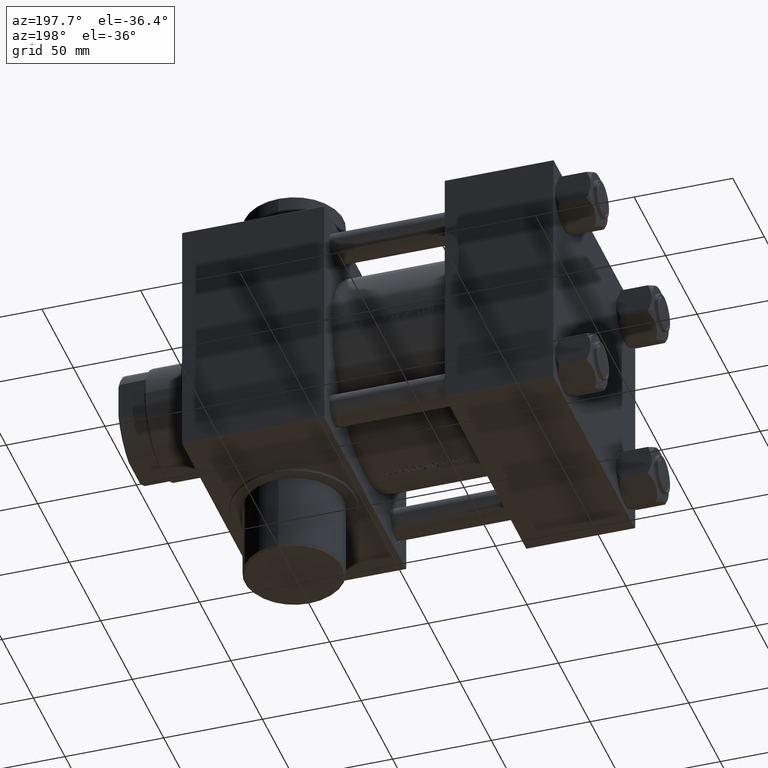
[diagram: clean part render]
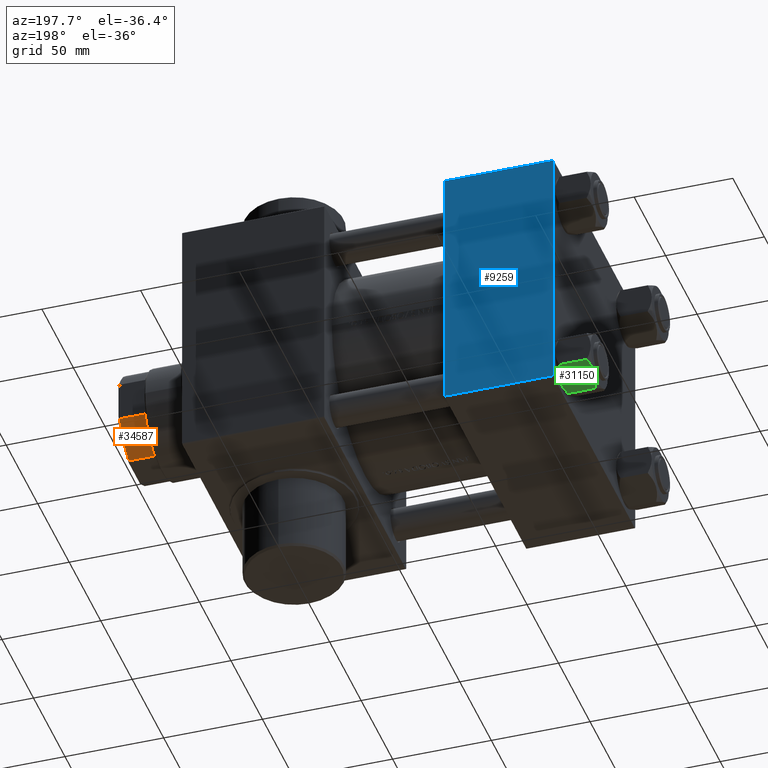
[diagram: same view with three faces highlighted in distinct colors, each labeled with its STEP entity id]
A machine part, auxiliary view with three faces highlighted in distinct colors.
Their STEP definitions:

[orange] entity #34587 — the highlighted cylindrical surface (partial cylindrical patch) has radius 27 mm, axis along (1, 0, 0).
#370 = DIRECTION ( 'NONE',  ( 1.000000000000000000, 0.000000000000000000, 0.000000000000000000 ) ) ;
#3110 = DIRECTION ( 'NONE',  ( -0.000000000000000000, -0.000000000000000000, 1.000000000000000000 ) ) ;
#3581 = DIRECTION ( 'NONE',  ( -1.000000000000000000, 2.664535259100375697E-15, 0.000000000000000000 ) ) ;
#4153 = CARTESIAN_POINT ( 'NONE',  ( 0.000000000000000000, 0.000000000000000000, 177.5000000000000000 ) ) ;
#5019 = AXIS2_PLACEMENT_3D ( 'NONE', #4153, #28831, #370 ) ;
#9801 = CARTESIAN_POINT ( 'NONE',  ( -25.00000000000000000, 10.19803902718555655, -0.001000000000001000089 ) ) ;
#11512 = CARTESIAN_POINT ( 'NONE',  ( -25.00000000000000000, 10.19803902718555655, 177.5000000000000000 ) ) ;
#11594 = CARTESIAN_POINT ( 'NONE',  ( -10.19803902718555300, 25.00000000000000000, 164.5000000000000000 ) ) ;
#11891 = CIRCLE ( 'NONE', #30082, 26.99999999999999645 ) ;
#12213 = FACE_OUTER_BOUND ( 'NONE', #24956, .T. ) ;
#12677 = DIRECTION ( 'NONE',  ( -0.000000000000000000, -0.000000000000000000, 1.000000000000000000 ) ) ;
#12905 = CARTESIAN_POINT ( 'NONE',  ( 0.000000000000000000, 0.000000000000000000, -0.001000000000001000089 ) ) ;
#13128 = DIRECTION ( 'NONE',  ( -0.000000000000000000, -0.000000000000000000, 1.000000000000000000 ) ) ;
#15074 = LINE ( 'NONE', #40897, #16774 ) ;
#15766 = CYLINDRICAL_SURFACE ( 'NONE', #26554, 26.99999999999999645 ) ;
#16774 = VECTOR ( 'NONE', #18848, 1000.000000000000000 ) ;
#18848 = DIRECTION ( 'NONE',  ( -0.000000000000000000, -0.000000000000000000, 1.000000000000000000 ) ) ;
#19265 = EDGE_CURVE ( 'NONE', #36234, #29622, #45139, .T. ) ;
#21713 = EDGE_CURVE ( 'NONE', #27846, #46281, #11891, .T. ) ;
#23056 = ORIENTED_EDGE ( 'NONE', *, *, #36180, .F. ) ;
#24345 = ORIENTED_EDGE ( 'NONE', *, *, #43677, .T. ) ;
#24956 = EDGE_LOOP ( 'NONE', ( #24345, #36300, #23056, #26725 ) ) ;
#26554 = AXIS2_PLACEMENT_3D ( 'NONE', #12905, #12677, #40886 ) ;
#26725 = ORIENTED_EDGE ( 'NONE', *, *, #21713, .T. ) ;
#26850 = VECTOR ( 'NONE', #13128, 1000.000000000000000 ) ;
#27846 = VERTEX_POINT ( 'NONE', #11594 ) ;
#28831 = DIRECTION ( 'NONE',  ( -0.000000000000000000, -0.000000000000000000, -1.000000000000000000 ) ) ;
#29277 = CARTESIAN_POINT ( 'NONE',  ( -10.19803902718555655, 25.00000000000000000, 177.5000000000000000 ) ) ;
#29622 = VERTEX_POINT ( 'NONE', #29277 ) ;
#30082 = AXIS2_PLACEMENT_3D ( 'NONE', #42239, #3110, #3581 ) ;
#31557 = CARTESIAN_POINT ( 'NONE',  ( -25.00000000000000000, 10.19803902718555122, 164.5000000000000000 ) ) ;
#34587 = ADVANCED_FACE ( 'NONE', ( #12213 ), #15766, .T. ) ;
#36180 = EDGE_CURVE ( 'NONE', #27846, #29622, #15074, .T. ) ;
#36234 = VERTEX_POINT ( 'NONE', #11512 ) ;
#36300 = ORIENTED_EDGE ( 'NONE', *, *, #19265, .T. ) ;
#40886 = DIRECTION ( 'NONE',  ( 1.000000000000000000, 0.000000000000000000, 0.000000000000000000 ) ) ;
#40897 = CARTESIAN_POINT ( 'NONE',  ( -10.19803902718555655, 25.00000000000000000, -0.001000000000001000089 ) ) ;
#42239 = CARTESIAN_POINT ( 'NONE',  ( 0.000000000000000000, 0.000000000000000000, 164.5000000000000000 ) ) ;
#42280 = LINE ( 'NONE', #9801, #26850 ) ;
#43677 = EDGE_CURVE ( 'NONE', #46281, #36234, #42280, .T. ) ;
#45139 = CIRCLE ( 'NONE', #5019, 26.99999999999999645 ) ;
#46281 = VERTEX_POINT ( 'NONE', #31557 ) ;

[blue] entity #9259 — the highlighted planar face has unit normal (0, -1, -0).
#744 = PLANE ( 'NONE',  #11049 ) ;
#3012 = ORIENTED_EDGE ( 'NONE', *, *, #10696, .F. ) ;
#4999 = DIRECTION ( 'NONE',  ( 0.000000000000000000, 1.067522139062650425E-16, -1.000000000000000000 ) ) ;
#5118 = DIRECTION ( 'NONE',  ( -1.000000000000000000, 0.000000000000000000, 0.000000000000000000 ) ) ;
#6041 = LINE ( 'NONE', #27181, #7395 ) ;
#6356 = VERTEX_POINT ( 'NONE', #29299 ) ;
#7395 = VECTOR ( 'NONE', #5118, 1000.000000000000000 ) ;
#9259 = ADVANCED_FACE ( 'NONE', ( #22296 ), #744, .F. ) ;
#9435 = CARTESIAN_POINT ( 'NONE',  ( 0.000000000000000000, 64.50000000000000000, 65.00000000000001421 ) ) ;
#10696 = EDGE_CURVE ( 'NONE', #40574, #6356, #44006, .T. ) ;
#11049 = AXIS2_PLACEMENT_3D ( 'NONE', #15202, #4999, #30391 ) ;
#12299 = VECTOR ( 'NONE', #13760, 1000.000000000000000 ) ;
#12750 = EDGE_CURVE ( 'NONE', #40574, #36642, #6041, .T. ) ;
#13760 = DIRECTION ( 'NONE',  ( 0.000000000000000000, -1.000000000000000000, -1.067522139062650425E-16 ) ) ;
#14464 = LINE ( 'NONE', #46685, #12299 ) ;
#15202 = CARTESIAN_POINT ( 'NONE',  ( 55.00000000000000000, 65.00000000000000000, 65.00000000000001421 ) ) ;
#15533 = ORIENTED_EDGE ( 'NONE', *, *, #40339, .T. ) ;
#17331 = ORIENTED_EDGE ( 'NONE', *, *, #12750, .T. ) ;
#21358 = DIRECTION ( 'NONE',  ( 1.000000000000000000, 0.000000000000000000, 0.000000000000000000 ) ) ;
#22296 = FACE_OUTER_BOUND ( 'NONE', #44384, .T. ) ;
#22665 = CARTESIAN_POINT ( 'NONE',  ( 55.00000000000000000, 65.00000000000000000, 65.00000000000001421 ) ) ;
#26489 = DIRECTION ( 'NONE',  ( 0.000000000000000000, -1.000000000000000000, -1.067522139062650425E-16 ) ) ;
#27181 = CARTESIAN_POINT ( 'NONE',  ( 0.000000000000000000, 64.50000000000000000, 65.00000000000001421 ) ) ;
#27819 = CARTESIAN_POINT ( 'NONE',  ( 55.00000000000000000, -64.50000000000002842, 65.00000000000000000 ) ) ;
#28203 = CARTESIAN_POINT ( 'NONE',  ( 0.000000000000000000, -64.50000000000002842, 65.00000000000000000 ) ) ;
#28968 = VERTEX_POINT ( 'NONE', #28203 ) ;
#29299 = CARTESIAN_POINT ( 'NONE',  ( 55.00000000000000000, -64.50000000000002842, 65.00000000000000000 ) ) ;
#30391 = DIRECTION ( 'NONE',  ( 0.000000000000000000, 1.000000000000000000, 1.067522139062650425E-16 ) ) ;
#32513 = LINE ( 'NONE', #27819, #42579 ) ;
#32756 = CARTESIAN_POINT ( 'NONE',  ( 55.00000000000000000, 64.50000000000000000, 65.00000000000001421 ) ) ;
#33842 = VECTOR ( 'NONE', #26489, 1000.000000000000000 ) ;
#36642 = VERTEX_POINT ( 'NONE', #9435 ) ;
#40339 = EDGE_CURVE ( 'NONE', #28968, #6356, #32513, .T. ) ;
#40574 = VERTEX_POINT ( 'NONE', #32756 ) ;
#42579 = VECTOR ( 'NONE', #21358, 1000.000000000000000 ) ;
#43931 = ORIENTED_EDGE ( 'NONE', *, *, #46400, .T. ) ;
#44006 = LINE ( 'NONE', #22665, #33842 ) ;
#44384 = EDGE_LOOP ( 'NONE', ( #43931, #15533, #3012, #17331 ) ) ;
#46400 = EDGE_CURVE ( 'NONE', #36642, #28968, #14464, .T. ) ;
#46685 = CARTESIAN_POINT ( 'NONE',  ( 0.000000000000000000, 65.00000000000000000, 65.00000000000001421 ) ) ;

[green] entity #31150 — the highlighted planar face has unit normal (0, -0.5, 0.866).
#472 = LINE ( 'NONE', #22252, #28646 ) ;
#530 = VERTEX_POINT ( 'NONE', #11530 ) ;
#801 = EDGE_CURVE ( 'NONE', #19573, #17342, #2665, .T. ) ;
#2665 = LINE ( 'NONE', #24234, #13240 ) ;
#2874 = CARTESIAN_POINT ( 'NONE',  ( 5.184073258379408244, -13.52731680711293372, -0.9481437906500832513 ) ) ;
#3041 = CARTESIAN_POINT ( 'NONE',  ( 7.622943475354652776, -13.52731680711293372, -2.000000000000000000 ) ) ;
#3177 = CARTESIAN_POINT ( 'NONE',  ( -7.622943475354647447, -13.52731680711293727, -16.00000000000000000 ) ) ;
#3739 = ORIENTED_EDGE ( 'NONE', *, *, #23022, .T. ) ;
#5146 = B_SPLINE_CURVE_WITH_KNOTS ( 'NONE', 3,
 ( #33713, #9043, #23280, #27324, #29940, #30185, #44608, #38901, #2874, #9509, #27558, #6413 ),
 .UNSPECIFIED., .F., .F.,
 ( 4, 2, 2, 2, 2, 4 ),
 ( 0.02774433486126546416, 0.02873404020403550266, 0.02972374554680554115, 0.03170315623234561814, 0.03368256691788569512, 0.03566197760342577211 ),
 .UNSPECIFIED. ) ;
#6413 = CARTESIAN_POINT ( 'NONE',  ( 7.622943475354652776, -13.52731680711293372, -2.000000000000000000 ) ) ;
#6529 = CARTESIAN_POINT ( 'NONE',  ( 4.553769687922309295, -13.52731680711293194, -17.26727080048548046 ) ) ;
#7490 = EDGE_CURVE ( 'NONE', #43321, #19573, #28329, .T. ) ;
#7751 = DIRECTION ( 'NONE',  ( 1.000000000000000000, 2.221156819432531199E-16, -0.000000000000000000 ) ) ;
#7979 = CARTESIAN_POINT ( 'NONE',  ( 7.622943475354652776, -13.52731680711293372, -16.00000000000000000 ) ) ;
#8481 = ORIENTED_EDGE ( 'NONE', *, *, #24801, .F. ) ;
#9043 = CARTESIAN_POINT ( 'NONE',  ( 0.3330234424833860007, -13.52731680711293727, 1.736982230502816853E-15 ) ) ;
#9260 = VECTOR ( 'NONE', #7751, 1000.000000000000000 ) ;
#9433 = CARTESIAN_POINT ( 'NONE',  ( -7.809999999999999609, -13.52731680711293727, -16.00000000000000000 ) ) ;
#9452 = CARTESIAN_POINT ( 'NONE',  ( 7.810000000000002274, -13.52731680711293372, -1.999999999999998224 ) ) ;
#9509 = CARTESIAN_POINT ( 'NONE',  ( 6.422751913021828685, -13.52731680711293549, -1.436509110925896948 ) ) ;
#10324 = CARTESIAN_POINT ( 'NONE',  ( 2.638177715023113379, -13.52731680711293549, -17.79984593233011481 ) ) ;
#11156 = PLANE ( 'NONE',  #21978 ) ;
#11237 = CARTESIAN_POINT ( 'NONE',  ( 3.004629197474319246E-15, -13.52731680711293727, -18.00000000000000000 ) ) ;
#11394 = VERTEX_POINT ( 'NONE', #7979 ) ;
#11530 = CARTESIAN_POINT ( 'NONE',  ( 7.810000000000002274, -13.52731680711293372, -16.00000000000000000 ) ) ;
#11688 = LINE ( 'NONE', #33260, #40880 ) ;
#11744 = EDGE_LOOP ( 'NONE', ( #32929, #3739, #8481, #24726, #15472, #11883, #24948, #14839, #21528, #15379 ) ) ;
#11883 = ORIENTED_EDGE ( 'NONE', *, *, #38871, .F. ) ;
#12922 = EDGE_CURVE ( 'NONE', #530, #11394, #36137, .T. ) ;
#13240 = VECTOR ( 'NONE', #20897, 1000.000000000000000 ) ;
#13431 = CARTESIAN_POINT ( 'NONE',  ( 7.030888348548065103, -13.52731680711293194, -16.29066211644969897 ) ) ;
#13850 = CARTESIAN_POINT ( 'NONE',  ( -0.3330234424833808937, -13.52731680711293372, -18.00000000000000711 ) ) ;
#14158 = CARTESIAN_POINT ( 'NONE',  ( 3.004629197474319246E-15, -13.52731680711293727, 0.000000000000000000 ) ) ;
#14839 = ORIENTED_EDGE ( 'NONE', *, *, #801, .F. ) ;
#14956 = CARTESIAN_POINT ( 'NONE',  ( -7.809999999999999609, -13.52731680711293727, -1.999999999999998224 ) ) ;
#15379 = ORIENTED_EDGE ( 'NONE', *, *, #19220, .F. ) ;
#15472 = ORIENTED_EDGE ( 'NONE', *, *, #32254, .F. ) ;
#15886 = CARTESIAN_POINT ( 'NONE',  ( -7.030888348548060662, -13.52731680711294082, -1.709337883550297699 ) ) ;
#17027 = DIRECTION ( 'NONE',  ( 1.000000000000000000, 2.221156819432531199E-16, -0.000000000000000000 ) ) ;
#17032 = CARTESIAN_POINT ( 'NONE',  ( 3.004629197474319246E-15, -13.52731680711293727, 0.000000000000000000 ) ) ;
#17342 = VERTEX_POINT ( 'NONE', #9433 ) ;
#18100 = CARTESIAN_POINT ( 'NONE',  ( -7.030203932307581560, -13.52731680711293727, -16.29099812210860065 ) ) ;
#19220 = EDGE_CURVE ( 'NONE', #11394, #43321, #34956, .T. ) ;
#19430 = CARTESIAN_POINT ( 'NONE',  ( -7.622943475354647447, -13.52731680711293727, -2.000000000000000000 ) ) ;
#19573 = VERTEX_POINT ( 'NONE', #40596 ) ;
#19662 = CARTESIAN_POINT ( 'NONE',  ( -4.553769687922305742, -13.52731680711294082, -0.7327291995145158721 ) ) ;
#19891 = CARTESIAN_POINT ( 'NONE',  ( -1.335584685993413956, -13.52731680711294082, 1.666960840196463265E-15 ) ) ;
#20057 = CARTESIAN_POINT ( 'NONE',  ( 1.335584685993418619, -13.52731680711293372, -18.00000000000000355 ) ) ;
#20897 = DIRECTION ( 'NONE',  ( -1.000000000000000000, -2.221156819432531199E-16, 0.000000000000000000 ) ) ;
#21001 = VECTOR ( 'NONE', #33279, 1000.000000000000000 ) ;
#21410 = CARTESIAN_POINT ( 'NONE',  ( -1.663410456966171180, -13.52731680711293549, -17.90195050864300796 ) ) ;
#21528 = ORIENTED_EDGE ( 'NONE', *, *, #7490, .F. ) ;
#21837 = VERTEX_POINT ( 'NONE', #14956 ) ;
#21978 = AXIS2_PLACEMENT_3D ( 'NONE', #25625, #26092, #40536 ) ;
#22121 = CARTESIAN_POINT ( 'NONE',  ( -2.644243758052987836, -13.52731680711293549, -17.75917188019760218 ) ) ;
#22252 = CARTESIAN_POINT ( 'NONE',  ( 7.810000000000002274, -13.52731680711293372, -18.00000000000000000 ) ) ;
#22529 = B_SPLINE_CURVE_WITH_KNOTS ( 'NONE', 3,
 ( #19430, #15886, #30367, #44790, #19662, #34132, #19891, #17032 ),
 .UNSPECIFIED., .F., .F.,
 ( 4, 2, 2, 4 ),
 ( 0.01980594295952729095, 0.02179054093496183425, 0.02377513891039637756, 0.02774433486126546416 ),
 .UNSPECIFIED. ) ;
#23022 = EDGE_CURVE ( 'NONE', #530, #27174, #472, .T. ) ;
#23280 = CARTESIAN_POINT ( 'NONE',  ( 0.6693083573771232420, -13.52731680711293372, -0.01249333081107902900 ) ) ;
#24234 = CARTESIAN_POINT ( 'NONE',  ( 7.810000000000002274, -13.52731680711293372, -16.00000000000000000 ) ) ;
#24726 = ORIENTED_EDGE ( 'NONE', *, *, #38332, .F. ) ;
#24801 = EDGE_CURVE ( 'NONE', #35071, #27174, #41925, .T. ) ;
#24948 = ORIENTED_EDGE ( 'NONE', *, *, #33085, .F. ) ;
#25470 = CARTESIAN_POINT ( 'NONE',  ( -4.557734399832409800, -13.52731680711293905, -17.26585298258849122 ) ) ;
#25625 = CARTESIAN_POINT ( 'NONE',  ( 7.810000000000002274, -13.52731680711293372, -18.00000000000000000 ) ) ;
#26092 = DIRECTION ( 'NONE',  ( -2.221156819432531199E-16, 1.000000000000000000, 0.000000000000000000 ) ) ;
#27174 = VERTEX_POINT ( 'NONE', #28622 ) ;
#27324 = CARTESIAN_POINT ( 'NONE',  ( 1.333889873825135686, -13.52731680711293549, -0.06156641003439144999 ) ) ;
#27444 = CARTESIAN_POINT ( 'NONE',  ( 5.189513245496335969, -13.52731680711293194, -17.04988915682674033 ) ) ;
#27558 = CARTESIAN_POINT ( 'NONE',  ( 7.030203932307590442, -13.52731680711293727, -1.709001877891394017 ) ) ;
#27669 = CARTESIAN_POINT ( 'NONE',  ( 3.004629197474319246E-15, -13.52731680711293727, -18.00000000000000000 ) ) ;
#28322 = CARTESIAN_POINT ( 'NONE',  ( -6.422751913021825132, -13.52731680711293905, -16.56349088907410305 ) ) ;
#28329 = B_SPLINE_CURVE_WITH_KNOTS ( 'NONE', 3,
 ( #11237, #13850, #35664, #32102, #21410, #22121, #36599, #25470, #46313, #28322, #18100, #3177 ),
 .UNSPECIFIED., .F., .F.,
 ( 4, 2, 2, 2, 2, 4 ),
 ( 0.02774433486126545376, 0.02873404020403549225, 0.02972374554680553074, 0.03170315623234560426, 0.03368256691788568125, 0.03566197760342575823 ),
 .UNSPECIFIED. ) ;
#28622 = CARTESIAN_POINT ( 'NONE',  ( 7.810000000000002274, -13.52731680711293372, -1.999999999999998224 ) ) ;
#28646 = VECTOR ( 'NONE', #32943, 1000.000000000000000 ) ;
#29940 = CARTESIAN_POINT ( 'NONE',  ( 1.663410456966175843, -13.52731680711293372, -0.09804949135698878826 ) ) ;
#30185 = CARTESIAN_POINT ( 'NONE',  ( 2.644243758052992277, -13.52731680711293372, -0.2408281198023969893 ) ) ;
#30367 = CARTESIAN_POINT ( 'NONE',  ( -6.427364677720470709, -13.52731680711293727, -1.438506937155139109 ) ) ;
#31150 = ADVANCED_FACE ( 'NONE', ( #36282 ), #11156, .F. ) ;
#32102 = CARTESIAN_POINT ( 'NONE',  ( -1.333889873825130579, -13.52731680711293549, -17.93843358996560866 ) ) ;
#32254 = EDGE_CURVE ( 'NONE', #37319, #42300, #22529, .T. ) ;
#32929 = ORIENTED_EDGE ( 'NONE', *, *, #12922, .F. ) ;
#32943 = DIRECTION ( 'NONE',  ( -0.000000000000000000, -0.000000000000000000, 1.000000000000000000 ) ) ;
#33085 = EDGE_CURVE ( 'NONE', #17342, #21837, #11688, .T. ) ;
#33260 = CARTESIAN_POINT ( 'NONE',  ( -7.809999999999999609, -13.52731680711293727, -18.00000000000000000 ) ) ;
#33279 = DIRECTION ( 'NONE',  ( -1.000000000000000000, -2.221156819432531199E-16, 0.000000000000000000 ) ) ;
#33514 = CARTESIAN_POINT ( 'NONE',  ( 7.810000000000002274, -13.52731680711293372, -16.00000000000000000 ) ) ;
#33713 = CARTESIAN_POINT ( 'NONE',  ( 3.004629197474319246E-15, -13.52731680711293727, 0.000000000000000000 ) ) ;
#34132 = CARTESIAN_POINT ( 'NONE',  ( -2.638177715023105385, -13.52731680711294082, -0.2001540676698838062 ) ) ;
#34697 = CARTESIAN_POINT ( 'NONE',  ( -7.622943475354647447, -13.52731680711293727, -2.000000000000000000 ) ) ;
#34956 = B_SPLINE_CURVE_WITH_KNOTS ( 'NONE', 3,
 ( #45892, #13431, #39014, #27444, #6529, #10324, #20057, #42343 ),
 .UNSPECIFIED., .F., .F.,
 ( 4, 2, 2, 4 ),
 ( 0.01980594295952729095, 0.02179054093496183078, 0.02377513891039637062, 0.02774433486126545376 ),
 .UNSPECIFIED. ) ;
#35071 = VERTEX_POINT ( 'NONE', #3041 ) ;
#35664 = CARTESIAN_POINT ( 'NONE',  ( -0.6693083573771178019, -13.52731680711293727, -17.98750666918892449 ) ) ;
#36137 = LINE ( 'NONE', #33514, #21001 ) ;
#36282 = FACE_OUTER_BOUND ( 'NONE', #11744, .T. ) ;
#36599 = CARTESIAN_POINT ( 'NONE',  ( -3.287826776903149728, -13.52731680711293727, -17.61954155462466076 ) ) ;
#37291 = DIRECTION ( 'NONE',  ( -0.000000000000000000, -0.000000000000000000, 1.000000000000000000 ) ) ;
#37319 = VERTEX_POINT ( 'NONE', #34697 ) ;
#38332 = EDGE_CURVE ( 'NONE', #42300, #35071, #5146, .T. ) ;
#38871 = EDGE_CURVE ( 'NONE', #21837, #37319, #43080, .T. ) ;
#38901 = CARTESIAN_POINT ( 'NONE',  ( 4.557734399832416905, -13.52731680711293016, -0.7341470174115138914 ) ) ;
#39014 = CARTESIAN_POINT ( 'NONE',  ( 6.427364677720476926, -13.52731680711293549, -16.56149306284486755 ) ) ;
#40536 = DIRECTION ( 'NONE',  ( -1.000000000000000000, -2.221156819432531199E-16, 0.000000000000000000 ) ) ;
#40596 = CARTESIAN_POINT ( 'NONE',  ( -7.622943475354647447, -13.52731680711293727, -16.00000000000000000 ) ) ;
#40778 = VECTOR ( 'NONE', #17027, 1000.000000000000000 ) ;
#40880 = VECTOR ( 'NONE', #37291, 1000.000000000000000 ) ;
#41925 = LINE ( 'NONE', #9452, #40778 ) ;
#42300 = VERTEX_POINT ( 'NONE', #14158 ) ;
#42343 = CARTESIAN_POINT ( 'NONE',  ( 3.004629197474319246E-15, -13.52731680711293727, -18.00000000000000000 ) ) ;
#43080 = LINE ( 'NONE', #46631, #9260 ) ;
#43321 = VERTEX_POINT ( 'NONE', #27669 ) ;
#44608 = CARTESIAN_POINT ( 'NONE',  ( 3.287826776903156833, -13.52731680711293194, -0.3804584453753362960 ) ) ;
#44790 = CARTESIAN_POINT ( 'NONE',  ( -5.189513245496330640, -13.52731680711293905, -0.9501108431732574466 ) ) ;
#45892 = CARTESIAN_POINT ( 'NONE',  ( 7.622943475354652776, -13.52731680711293372, -16.00000000000000000 ) ) ;
#46313 = CARTESIAN_POINT ( 'NONE',  ( -5.184073258379402027, -13.52731680711293905, -17.05185620934992130 ) ) ;
#46631 = CARTESIAN_POINT ( 'NONE',  ( 7.810000000000002274, -13.52731680711293372, -1.999999999999998224 ) ) ;